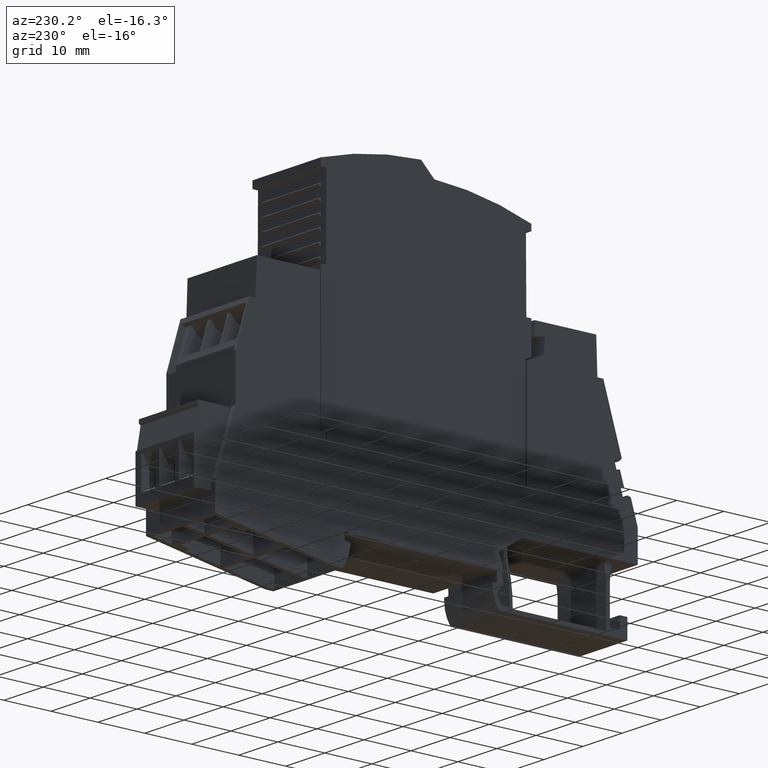
[diagram: clean part render]
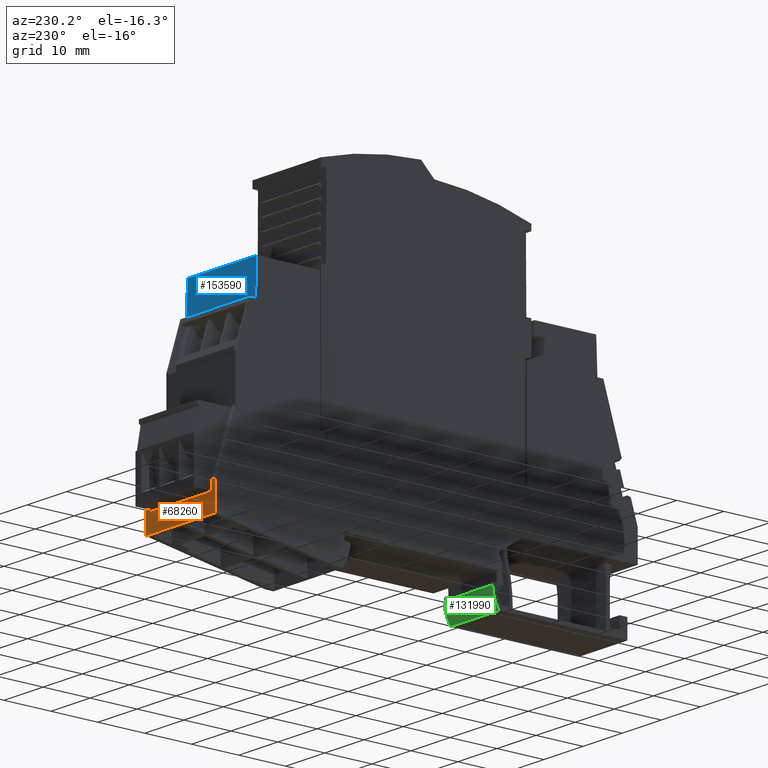
[diagram: same view with three faces highlighted in distinct colors, each labeled with its STEP entity id]
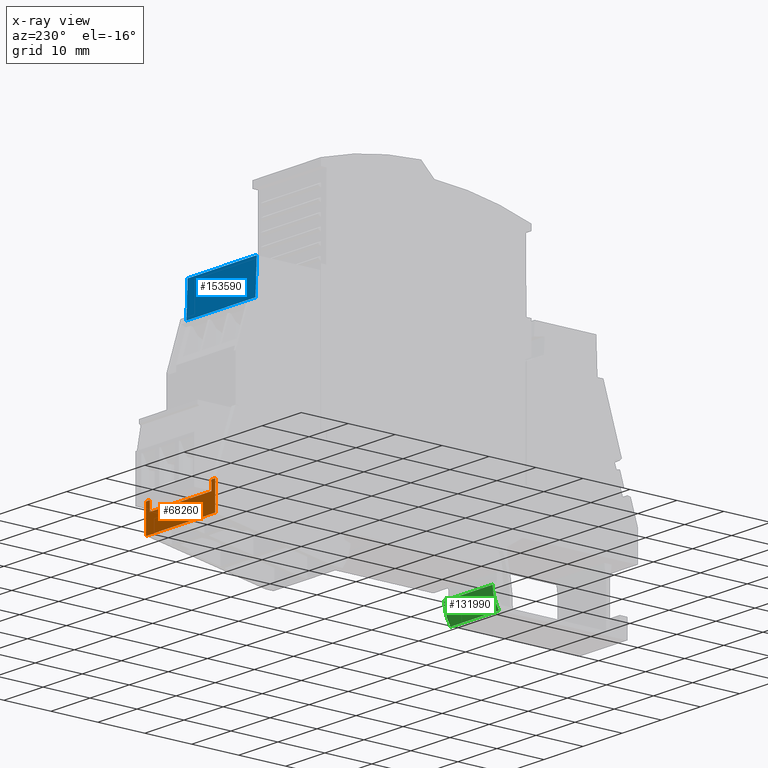
[diagram: x-ray of the same camera — body ghosted, the three highlighted faces saturated]
A machine part, auxiliary view with three faces highlighted in distinct colors.
The next image is the same camera in x-ray (body ghosted, the three faces saturated) — at least one of them is partly hidden behind the body in this view.
Their STEP definitions:

[orange] entity #68260 — the highlighted planar face has unit normal (-0, -1, -0).
#26690=CARTESIAN_POINT('',(24.3413512994152,23.3745932343398,
-34.5000000000924));
#26700=VERTEX_POINT('',#26690);
#26950=CARTESIAN_POINT('',(24.3413512994152,25.3775451398055,
-34.5000000000924));
#26960=VERTEX_POINT('',#26950);
#26990=CARTESIAN_POINT('',(24.3413512994152,15.060393,-34.5000000000924)
);
#27000=DIRECTION('',(-4.57758189566971E-16,-1.,-3.05683600773142E-30));
#27010=VECTOR('',#27000,1.);
#27020=LINE('',#26990,#27010);
#27030=EDGE_CURVE('',#26960,#26700,#27020,.T.);
#58100=CARTESIAN_POINT('',(24.3413512994152,19.4814707652613,
-51.2000000000924));
#58110=VERTEX_POINT('',#58100);
#58140=CARTESIAN_POINT('',(24.3413512994152,19.4814707652613,
-41.3000000000924));
#58150=DIRECTION('',(0.,-3.15544362088405E-30,1.));
#58160=VECTOR('',#58150,1.);
#58170=LINE('',#58140,#58160);
#58180=CARTESIAN_POINT('',(24.3413512994152,19.4814707652613,
-33.5000000000924));
#58190=VERTEX_POINT('',#58180);
#58200=EDGE_CURVE('',#58110,#58190,#58170,.T.);
#65920=CARTESIAN_POINT('',(24.3413512994152,23.3745932343398,
-50.2000000000924));
#65930=VERTEX_POINT('',#65920);
#65960=CARTESIAN_POINT('',(24.3413512994152,15.060393,-50.2000000000924)
);
#65970=DIRECTION('',(4.57758189566971E-16,1.,3.05683600773142E-30));
#65980=VECTOR('',#65970,1.);
#65990=LINE('',#65960,#65980);
#66000=CARTESIAN_POINT('',(24.3413512994152,25.3775451398056,
-50.2000000000924));
#66010=VERTEX_POINT('',#66000);
#66020=EDGE_CURVE('',#65930,#66010,#65990,.T.);
#67820=CARTESIAN_POINT('',(24.3413512994152,43.5572768700611,
-51.2000000000924));
#67830=DIRECTION('',(1.,-4.57758189566971E-16,-1.44443015917653E-45));
#67840=DIRECTION('',(4.57758189566971E-16,1.,3.15544362088405E-30));
#67850=AXIS2_PLACEMENT_3D('',#67820,#67830,#67840);
#67860=PLANE('',#67850);
#67870=CARTESIAN_POINT('',(24.3413512994151,25.3775451398056,
-41.3000000000924));
#67880=DIRECTION('',(0.,-3.15544362088405E-30,1.));
#67890=VECTOR('',#67880,1.);
#67900=LINE('',#67870,#67890);
#67910=CARTESIAN_POINT('',(24.3413512994152,25.3775451398056,
-51.2000000000924));
#67920=VERTEX_POINT('',#67910);
#67930=EDGE_CURVE('',#67920,#66010,#67900,.T.);
#67940=ORIENTED_EDGE('',*,*,#67930,.F.);
#67950=ORIENTED_EDGE('',*,*,#66020,.T.);
#67960=CARTESIAN_POINT('',(24.3413512994152,23.3745932343398,
-41.3000000000924));
#67970=DIRECTION('',(-1.84889274661175E-32,-4.68311845164275E-17,-1.));
#67980=VECTOR('',#67970,1.);
#67990=LINE('',#67960,#67980);
#68000=EDGE_CURVE('',#26700,#65930,#67990,.T.);
#68010=ORIENTED_EDGE('',*,*,#68000,.T.);
#68020=ORIENTED_EDGE('',*,*,#27030,.T.);
#68030=CARTESIAN_POINT('',(24.3413512994151,25.3775451398056,
-41.3000000000924));
#68040=DIRECTION('',(0.,-3.15544362088405E-30,1.));
#68050=VECTOR('',#68040,1.);
#68060=LINE('',#68030,#68050);
#68070=CARTESIAN_POINT('',(24.3413512994152,25.3775451398056,
-33.5000000000924));
#68080=VERTEX_POINT('',#68070);
#68090=EDGE_CURVE('',#26960,#68080,#68060,.T.);
#68100=ORIENTED_EDGE('',*,*,#68090,.F.);
#68110=CARTESIAN_POINT('',(24.3413512994152,15.060393,-33.5000000000924)
);
#68120=DIRECTION('',(4.57758189566971E-16,1.,3.05683600773142E-30));
#68130=VECTOR('',#68120,1.);
#68140=LINE('',#68110,#68130);
#68150=EDGE_CURVE('',#58190,#68080,#68140,.T.);
#68160=ORIENTED_EDGE('',*,*,#68150,.T.);
#68170=ORIENTED_EDGE('',*,*,#58200,.T.);
#68180=CARTESIAN_POINT('',(24.3413512994152,15.060393,-51.2000000000924)
);
#68190=DIRECTION('',(4.57758189566971E-16,1.,3.15544362088405E-30));
#68200=VECTOR('',#68190,1.);
#68210=LINE('',#68180,#68200);
#68220=EDGE_CURVE('',#58110,#67920,#68210,.T.);
#68230=ORIENTED_EDGE('',*,*,#68220,.F.);
#68240=EDGE_LOOP('',(#68230,#68170,#68160,#68100,#68020,#68010,#67950,
#67940));
#68250=FACE_OUTER_BOUND('',#68240,.T.);
#68260=ADVANCED_FACE('',(#68250),#67860,.F.);

[blue] entity #153590 — the highlighted planar face has unit normal (-0, -0.9994, -0.0349).
#71230=CARTESIAN_POINT('',(32.9381757205978,57.8062740524413,
-33.5000000000924));
#71240=VERTEX_POINT('',#71230);
#71270=CARTESIAN_POINT('',(31.7725150867391,24.4261208993388,
-33.5000000000924));
#71280=DIRECTION('',(-0.034899496702501,-0.999390827019096,0.));
#71290=VECTOR('',#71280,1.);
#71300=LINE('',#71270,#71290);
#71310=CARTESIAN_POINT('',(33.1913512994131,65.0562740524421,
-33.5000000000924));
#71320=VERTEX_POINT('',#71310);
#71330=EDGE_CURVE('',#71320,#71240,#71300,.T.);
#80270=CARTESIAN_POINT('',(33.1913512994131,65.0562740524421,
-41.3000000000924));
#80280=DIRECTION('',(0.,0.,1.));
#80290=VECTOR('',#80280,1.);
#80300=LINE('',#80270,#80290);
#80310=CARTESIAN_POINT('',(33.1913512994131,65.0562740524421,
-51.2000000000924));
#80320=VERTEX_POINT('',#80310);
#80330=EDGE_CURVE('',#80320,#71320,#80300,.T.);
#90370=CARTESIAN_POINT('',(31.7725150867391,24.4261208993388,
-51.2000000000924));
#90380=DIRECTION('',(-0.034899496702501,-0.999390827019096,0.));
#90390=VECTOR('',#90380,1.);
#90400=LINE('',#90370,#90390);
#90410=CARTESIAN_POINT('',(32.9381757205978,57.8062740524413,
-51.2000000000924));
#90420=VERTEX_POINT('',#90410);
#90430=EDGE_CURVE('',#80320,#90420,#90400,.T.);
#105680=CARTESIAN_POINT('',(32.9381757205978,57.8062740524411,
-33.5000000000924));
#105690=DIRECTION('',(0.,0.,-1.));
#105700=VECTOR('',#105690,1.);
#105710=LINE('',#105680,#105700);
#105720=EDGE_CURVE('',#71240,#90420,#105710,.T.);
#153480=CARTESIAN_POINT('',(32.9381757205978,57.8062740524411,
-33.5000000000924));
#153490=DIRECTION('',(0.999390827019096,-0.034899496702501,0.));
#153500=DIRECTION('',(-0.034899496702501,-0.999390827019096,0.));
#153510=AXIS2_PLACEMENT_3D('',#153480,#153490,#153500);
#153520=PLANE('',#153510);
#153530=ORIENTED_EDGE('',*,*,#71330,.F.);
#153540=ORIENTED_EDGE('',*,*,#105720,.F.);
#153550=ORIENTED_EDGE('',*,*,#90430,.T.);
#153560=ORIENTED_EDGE('',*,*,#80330,.F.);
#153570=EDGE_LOOP('',(#153560,#153550,#153540,#153530));
#153580=FACE_OUTER_BOUND('',#153570,.T.);
#153590=ADVANCED_FACE('',(#153580),#153520,.F.);

[green] entity #131990 — the highlighted cylindrical surface (partial cylindrical patch) has radius 7 mm, axis along (1, -0, -0).
#10100=CARTESIAN_POINT('',(87.0005839969454,15.1393109976649,
-36.1500000000924));
#10110=VERTEX_POINT('',#10100);
#10140=CARTESIAN_POINT('',(92.641561787589,19.2841113023196,
-36.1500000000924));
#10150=DIRECTION('',(0.,0.,-1.));
#10160=DIRECTION('',(-0.999999960702971,-0.000280346313663573,0.));
#10170=AXIS2_PLACEMENT_3D('',#10140,#10150,#10160);
#10180=CIRCLE('',#10170,7.);
#10190=CARTESIAN_POINT('',(85.6415620626682,19.2821488781317,
-36.1500000000924));
#10200=VERTEX_POINT('',#10190);
#10210=EDGE_CURVE('',#10110,#10200,#10180,.T.);
#64970=CARTESIAN_POINT('',(85.6415620626682,19.2821488781317,
-48.5500000000924));
#64980=VERTEX_POINT('',#64970);
#65010=CARTESIAN_POINT('',(92.641561787589,19.2841113023196,
-48.5500000000924));
#65020=DIRECTION('',(0.,0.,-1.));
#65030=DIRECTION('',(-0.999999960702971,-0.000280346313663573,0.));
#65040=AXIS2_PLACEMENT_3D('',#65010,#65020,#65030);
#65050=CIRCLE('',#65040,7.);
#65060=CARTESIAN_POINT('',(87.0005839969454,15.1393109976649,
-48.5500000000924));
#65070=VERTEX_POINT('',#65060);
#65080=EDGE_CURVE('',#65070,#64980,#65050,.T.);
#98310=CARTESIAN_POINT('',(85.6415620626682,19.2821488781317,
-36.1500000000924));
#98320=DIRECTION('',(0.,0.,-1.));
#98330=VECTOR('',#98320,1.);
#98340=LINE('',#98310,#98330);
#98350=EDGE_CURVE('',#10200,#64980,#98340,.T.);
#131830=CARTESIAN_POINT('',(92.641561787589,19.2841113023196,
-36.1500000000924));
#131840=DIRECTION('',(0.,0.,-1.));
#131850=DIRECTION('',(-0.999999960702971,-0.000280346313663573,0.));
#131860=AXIS2_PLACEMENT_3D('',#131830,#131840,#131850);
#131870=CYLINDRICAL_SURFACE('',#131860,7.);
#131880=ORIENTED_EDGE('',*,*,#10210,.T.);
#131890=CARTESIAN_POINT('',(87.0005839969454,15.1393109976649,
-36.1500000000924));
#131900=DIRECTION('',(0.,0.,-1.));
#131910=VECTOR('',#131900,1.);
#131920=LINE('',#131890,#131910);
#131930=EDGE_CURVE('',#10110,#65070,#131920,.T.);
#131940=ORIENTED_EDGE('',*,*,#131930,.F.);
#131950=ORIENTED_EDGE('',*,*,#65080,.F.);
#131960=ORIENTED_EDGE('',*,*,#98350,.T.);
#131970=EDGE_LOOP('',(#131960,#131950,#131940,#131880));
#131980=FACE_OUTER_BOUND('',#131970,.T.);
#131990=ADVANCED_FACE('',(#131980),#131870,.T.);